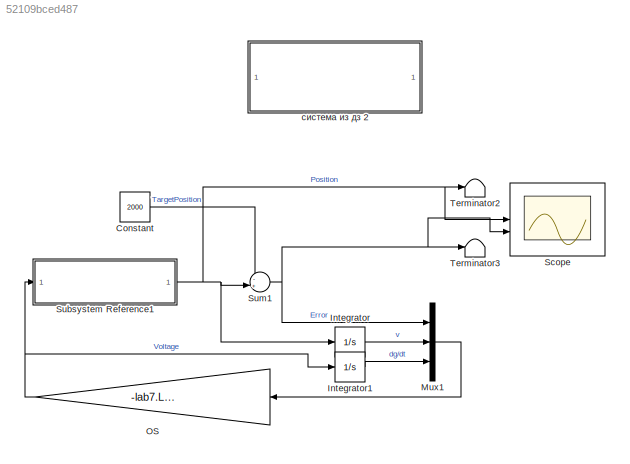
MODEL slx_52109bced487
KIND model
CONFIG AbsTol = 1e-3
CONFIG EnableMultiTasking = on
CONFIG FixedStep = auto
CONFIG MaxStep = 0.01
CONFIG MinStep = auto
CONFIG RelTol = 1e-3
CONFIG SampleTimeConstraint = Unconstrained
CONFIG SolverName = VariableStepAuto
CONFIG StartTime = 0.0
CONFIG StopTime = 10.0
BLOCK [Constant] Constant
  Value = 2000
BLOCK [Integrator] Integrator
BLOCK [Integrator] Integrator1
BLOCK [Mux] Mux1
  DisplayOption = bar
  Inputs = 3
BLOCK [Gain] OS
  Gain = -lab7.LQRParams.K
  Multiplication = Matrix(K*u)
BLOCK [Scope] Scope
  Floating = off
  NumInputPorts = 2
  ScopeSpecificationString = Simulink.scopes.TimeScopeBlockCfg('CurrentConfiguration', extmgr.ConfigurationSet(extmgr.Configuration('Core','General UI',true,'FigureColor',[1 1 1]),extmgr.Configuration('Core','Source UI',true),extmgr.Configuration('Sources','WiredSimulink',true),extmgr.Configuration('Visuals','Time Domain',true,'SerializedDisplays',{struct('MinYLimReal','-0.000000000058','MaxYLimReal','0.000000000027','YLabelR...<+2262ch>
BLOCK [SubSystem] Subsystem Reference1
  ReferencedSubsystem = dz1_model
BLOCK [Sum] Sum1
  Inputs = -+|
BLOCK [Terminator] Terminator2
BLOCK [Terminator] Terminator3
BLOCK [SubSystem] система из дз 2
  Commented = on
  ReferencedSubsystem = testSubject
LINE Constant:1 -> Sum1:1
LINE Integrator1:1 -> Mux1:3
LINE Integrator:1 -> Mux1:2
LINE Mux1:1 -> OS:1
NET OS:1 -> Integrator1:1, Subsystem Reference1:1
NET Subsystem Reference1:1 -> Integrator:1, Scope:1, Sum1:2, Terminator2:1
NET Sum1:1 -> Mux1:1, Scope:2, Terminator3:1
note: NET lines group one-source signal fan-out (src -> all destinations, sorted); 1:1 wires keep LINE
